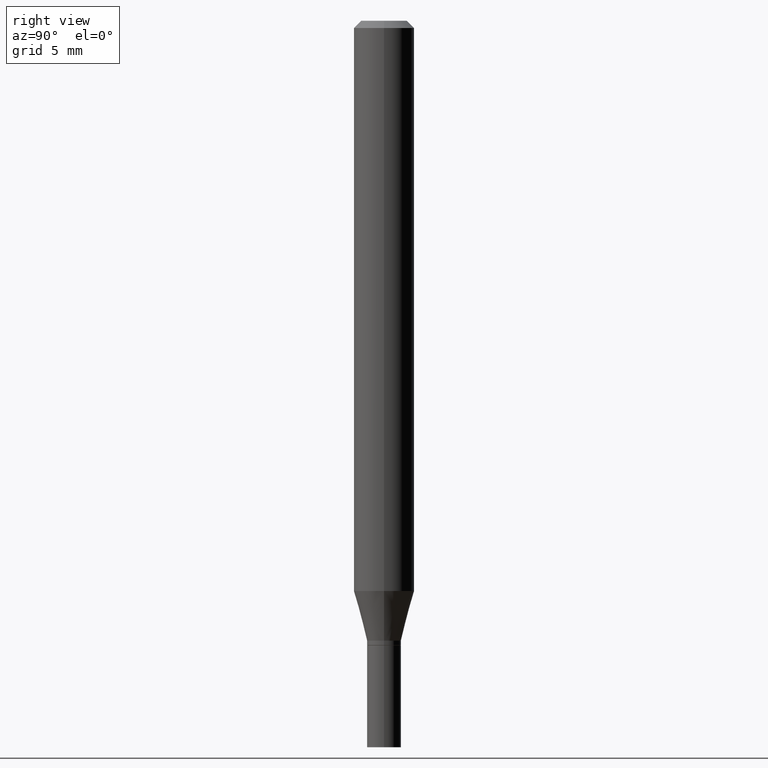
[diagram: clean part render]
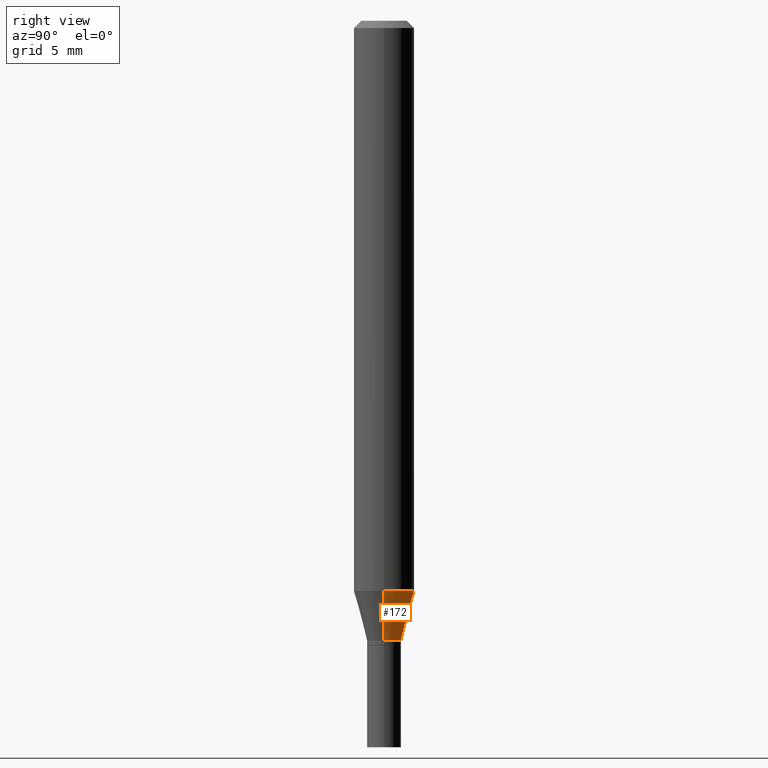
[diagram: same view with one face highlighted and labeled with its STEP entity id]
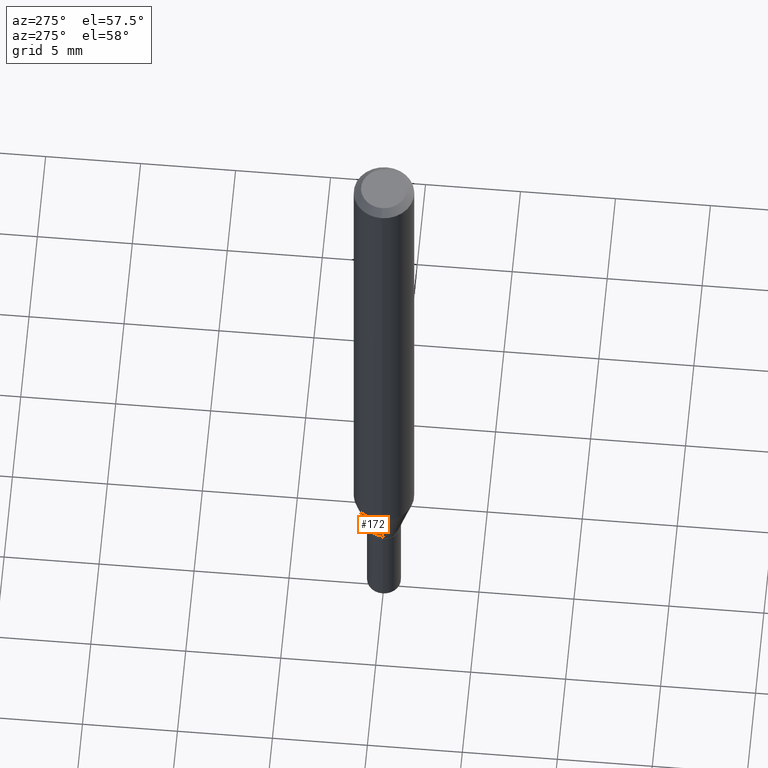
[diagram: same view with one face highlighted and labeled with its STEP entity id]
A machine part, right view. The second image highlights one B-rep face of the part: STEP entity #172.
A second angle (auxiliary view) of the same face is appended — the face is thin or edge-on in the first view.
In plain terms, the highlighted conical surface has half-angle 15 deg.
Its self-contained STEP definition (entity closure, byte-faithful):
#4 = CARTESIAN_POINT ( 'NONE',  ( -0.03499999999999992700, -4.220406156203192133E-15, -1.280000000000000027 ) ) ;
#13 = VERTEX_POINT ( 'NONE', #201 ) ;
#15 = EDGE_LOOP ( 'NONE', ( #268, #364, #332, #270 ) ) ;
#26 = CARTESIAN_POINT ( 'NONE',  ( 0.06250000000000000000, -4.547195672942983858E-15, -1.177368602791855512 ) ) ;
#30 = CARTESIAN_POINT ( 'NONE',  ( 0.03499999999999992700, -4.713499807438245807E-15, -1.280000000000000027 ) ) ;
#32 = DIRECTION ( 'NONE',  ( -2.445468806185136597E-29, 3.491481338843145583E-15, 1.000000000000000000 ) ) ;
#40 = CIRCLE ( 'NONE', #175, 0.03499999999999992700 ) ;
#71 = CARTESIAN_POINT ( 'NONE',  ( 3.130200071916974821E-29, -4.469096113719226630E-15, -1.280000000000000027 ) ) ;
#85 = AXIS2_PLACEMENT_3D ( 'NONE', #412, #99, #414 ) ;
#99 = DIRECTION ( 'NONE',  ( -2.445468806185136597E-29, 3.491481338843145583E-15, 1.000000000000000000 ) ) ;
#101 = VERTEX_POINT ( 'NONE', #26 ) ;
#107 = DIRECTION ( 'NONE',  ( 0.2588190451025205729, 1.565188264969627490E-15, 0.9659258262890682012 ) ) ;
#108 = DIRECTION ( 'NONE',  ( 1.000000000000000000, -6.982962677686264344E-15, 0.000000000000000000 ) ) ;
#116 = EDGE_CURVE ( 'NONE', #101, #276, #190, .T. ) ;
#141 = CARTESIAN_POINT ( 'NONE',  ( 0.03499999999999992700, -4.713499807438245807E-15, -1.280000000000000027 ) ) ;
#145 = CARTESIAN_POINT ( 'NONE',  ( 3.130200071916974821E-29, -4.469096113719226630E-15, -1.280000000000000027 ) ) ;
#172 = ADVANCED_FACE ( 'NONE', ( #431 ), #371, .T. ) ;
#175 = AXIS2_PLACEMENT_3D ( 'NONE', #145, #32, #208 ) ;
#184 = VECTOR ( 'NONE', #107, 39.37007874015748854 ) ;
#190 = CIRCLE ( 'NONE', #85, 0.06250000000000000000 ) ;
#201 = CARTESIAN_POINT ( 'NONE',  ( -0.03499999999999992700, -3.943538725970360852E-15, -1.280000000000000027 ) ) ;
#203 = CARTESIAN_POINT ( 'NONE',  ( -0.06250000000000000000, -3.666671295737529572E-15, -1.177368602791855512 ) ) ;
#208 = DIRECTION ( 'NONE',  ( 1.000000000000000000, -6.982962677686264344E-15, 0.000000000000000000 ) ) ;
#210 = LINE ( 'NONE', #30, #184 ) ;
#221 = EDGE_CURVE ( 'NONE', #345, #101, #210, .T. ) ;
#246 = LINE ( 'NONE', #4, #250 ) ;
#250 = VECTOR ( 'NONE', #260, 39.37007874015748854 ) ;
#260 = DIRECTION ( 'NONE',  ( -0.2588190451025205729, 5.211531920934544731E-15, 0.9659258262890682012 ) ) ;
#268 = ORIENTED_EDGE ( 'NONE', *, *, #366, .T. ) ;
#270 = ORIENTED_EDGE ( 'NONE', *, *, #221, .F. ) ;
#276 = VERTEX_POINT ( 'NONE', #203 ) ;
#332 = ORIENTED_EDGE ( 'NONE', *, *, #116, .F. ) ;
#345 = VERTEX_POINT ( 'NONE', #141 ) ;
#349 = DIRECTION ( 'NONE',  ( -2.445468806185136597E-29, 3.491481338843145583E-15, 1.000000000000000000 ) ) ;
#363 = AXIS2_PLACEMENT_3D ( 'NONE', #71, #349, #108 ) ;
#364 = ORIENTED_EDGE ( 'NONE', *, *, #397, .T. ) ;
#366 = EDGE_CURVE ( 'NONE', #345, #13, #40, .T. ) ;
#371 = CONICAL_SURFACE ( 'NONE', #363, 0.03499999999999992700, 0.2617993877991492968 ) ;
#397 = EDGE_CURVE ( 'NONE', #13, #276, #246, .T. ) ;
#412 = CARTESIAN_POINT ( 'NONE',  ( 2.879218191509261497E-29, -4.110760505587591399E-15, -1.177368602791855512 ) ) ;
#414 = DIRECTION ( 'NONE',  ( 1.000000000000000000, -6.982962677686270655E-15, 0.000000000000000000 ) ) ;
#431 = FACE_OUTER_BOUND ( 'NONE', #15, .T. ) ;